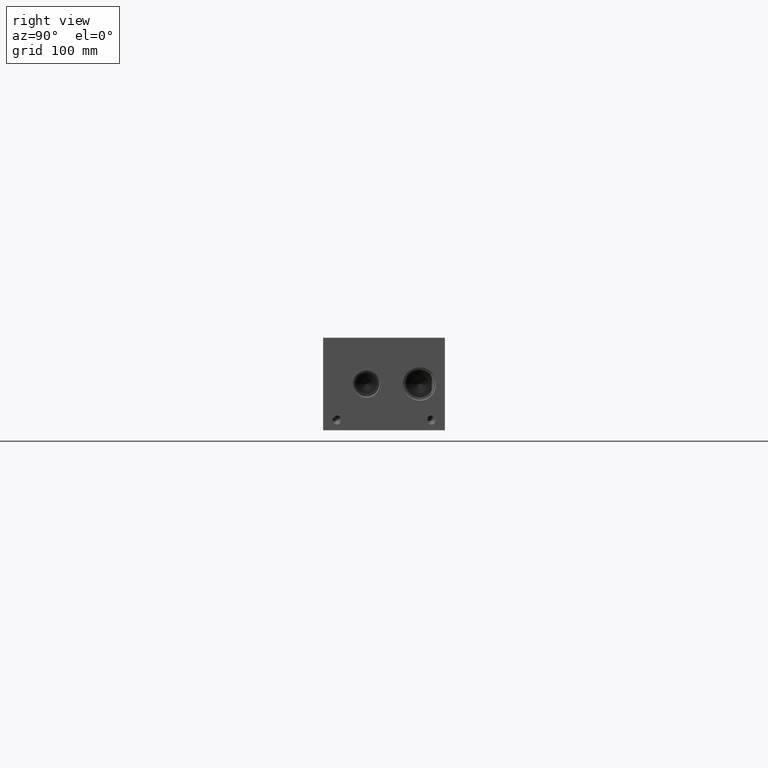
[diagram: clean part render]
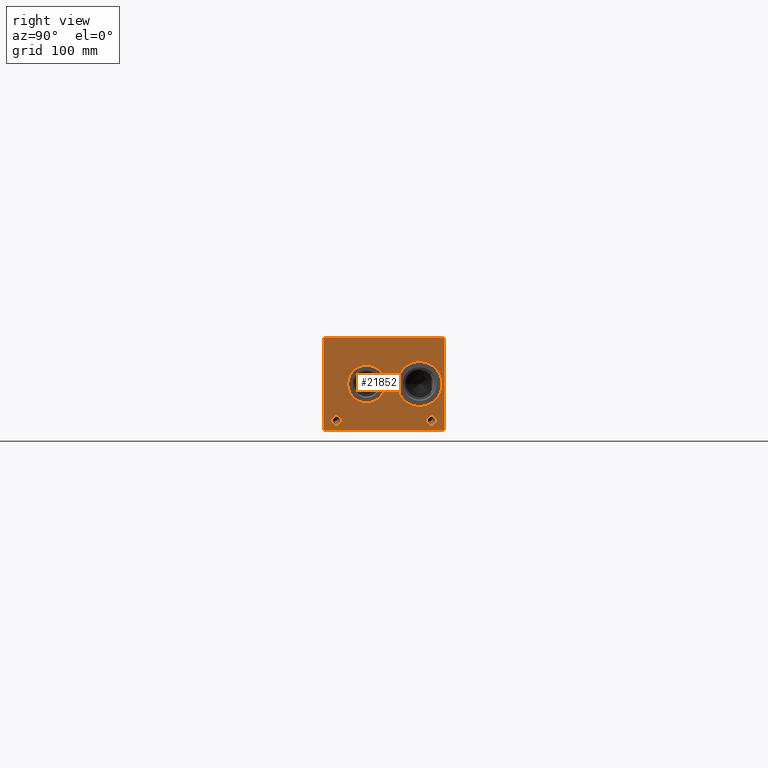
[diagram: same view with one face highlighted and labeled with its STEP entity id]
A machine part, right view. The second image highlights one B-rep face of the part: STEP entity #21852.
In plain terms, the highlighted planar face has unit normal (1, 0, 0).
Its self-contained STEP definition (entity closure, byte-faithful):
#472=CIRCLE('',#23086,6.35);
#473=CIRCLE('',#23087,6.35);
#474=CIRCLE('',#23088,6.35);
#475=CIRCLE('',#23089,6.35);
#476=CIRCLE('',#23090,24.5618);
#477=CIRCLE('',#23091,24.5618);
#478=CIRCLE('',#23092,29.2862);
#479=CIRCLE('',#23093,29.2862);
#1399=FACE_BOUND('',#3598,.T.);
#1400=FACE_BOUND('',#3599,.T.);
#1401=FACE_BOUND('',#3600,.T.);
#1402=FACE_BOUND('',#3601,.T.);
#1403=FACE_BOUND('',#3602,.T.);
#1404=FACE_BOUND('',#3603,.T.);
#1679=B_SPLINE_CURVE_WITH_KNOTS('',2,(#30847,#30848,#30849,#30850),
 .UNSPECIFIED.,.F.,.F.,(3,1,3),(0.,1.,2.),.UNSPECIFIED.);
#1681=B_SPLINE_CURVE_WITH_KNOTS('',2,(#30868,#30869,#30870,#30871),
 .UNSPECIFIED.,.F.,.F.,(3,1,3),(0.,1.,2.),.UNSPECIFIED.);
#1683=B_SPLINE_CURVE_WITH_KNOTS('',2,(#30917,#30918,#30919,#30920),
 .UNSPECIFIED.,.F.,.F.,(3,1,3),(0.,1.,2.),.UNSPECIFIED.);
#1685=B_SPLINE_CURVE_WITH_KNOTS('',2,(#30935,#30936,#30937,#30938),
 .UNSPECIFIED.,.F.,.F.,(3,1,3),(0.,1.,2.),.UNSPECIFIED.);
#2369=FACE_OUTER_BOUND('',#3597,.T.);
#3597=EDGE_LOOP('',(#14334,#14335,#14336,#14337));
#3598=EDGE_LOOP('',(#14338,#14339,#14340,#14341,#14342,#14343,#14344,#14345));
#3599=EDGE_LOOP('',(#14346,#14347));
#3600=EDGE_LOOP('',(#14348,#14349));
#3601=EDGE_LOOP('',(#14350,#14351));
#3602=EDGE_LOOP('',(#14352,#14353));
#3603=EDGE_LOOP('',(#14354,#14355,#14356,#14357,#14358,#14359,#14360,#14361,
#14362));
#5070=LINE('',#30697,#6907);
#5074=LINE('',#30705,#6911);
#5077=LINE('',#30711,#6914);
#5080=LINE('',#30717,#6917);
#5083=LINE('',#30723,#6920);
#5086=LINE('',#30729,#6923);
#5089=LINE('',#30735,#6926);
#5092=LINE('',#30740,#6929);
#5110=LINE('',#30880,#6947);
#5113=LINE('',#30886,#6950);
#5116=LINE('',#30892,#6953);
#5119=LINE('',#30898,#6956);
#5122=LINE('',#30904,#6959);
#5126=LINE('',#30947,#6963);
#5127=LINE('',#30949,#6964);
#5128=LINE('',#30951,#6965);
#5129=LINE('',#30952,#6966);
#6907=VECTOR('',#25000,10.);
#6911=VECTOR('',#25006,10.);
#6914=VECTOR('',#25011,10.);
#6917=VECTOR('',#25016,10.);
#6920=VECTOR('',#25021,10.);
#6923=VECTOR('',#25026,10.);
#6926=VECTOR('',#25031,10.);
#6929=VECTOR('',#25036,10.);
#6947=VECTOR('',#25064,10.);
#6950=VECTOR('',#25069,10.);
#6953=VECTOR('',#25074,10.);
#6956=VECTOR('',#25079,10.);
#6959=VECTOR('',#25084,10.);
#6963=VECTOR('',#25092,10.);
#6964=VECTOR('',#25093,10.);
#6965=VECTOR('',#25094,10.);
#6966=VECTOR('',#25095,10.);
#8744=VERTEX_POINT('',#30695);
#8745=VERTEX_POINT('',#30696);
#8748=VERTEX_POINT('',#30704);
#8750=VERTEX_POINT('',#30710);
#8752=VERTEX_POINT('',#30716);
#8754=VERTEX_POINT('',#30722);
#8756=VERTEX_POINT('',#30728);
#8758=VERTEX_POINT('',#30734);
#8774=VERTEX_POINT('',#30845);
#8775=VERTEX_POINT('',#30846);
#8778=VERTEX_POINT('',#30867);
#8780=VERTEX_POINT('',#30879);
#8782=VERTEX_POINT('',#30885);
#8784=VERTEX_POINT('',#30891);
#8786=VERTEX_POINT('',#30897);
#8788=VERTEX_POINT('',#30903);
#8790=VERTEX_POINT('',#30916);
#8792=VERTEX_POINT('',#30945);
#8793=VERTEX_POINT('',#30946);
#8794=VERTEX_POINT('',#30948);
#8795=VERTEX_POINT('',#30950);
#8796=VERTEX_POINT('',#30953);
#8797=VERTEX_POINT('',#30954);
#8798=VERTEX_POINT('',#30957);
#8799=VERTEX_POINT('',#30958);
#8800=VERTEX_POINT('',#30961);
#8801=VERTEX_POINT('',#30962);
#8802=VERTEX_POINT('',#30965);
#8803=VERTEX_POINT('',#30966);
#11003=EDGE_CURVE('',#8744,#8745,#5070,.T.);
#11007=EDGE_CURVE('',#8748,#8744,#5074,.T.);
#11010=EDGE_CURVE('',#8750,#8748,#5077,.T.);
#11013=EDGE_CURVE('',#8752,#8750,#5080,.T.);
#11016=EDGE_CURVE('',#8754,#8752,#5083,.T.);
#11019=EDGE_CURVE('',#8756,#8754,#5086,.T.);
#11022=EDGE_CURVE('',#8758,#8756,#5089,.T.);
#11025=EDGE_CURVE('',#8745,#8758,#5092,.T.);
#11048=EDGE_CURVE('',#8774,#8775,#1679,.T.);
#11052=EDGE_CURVE('',#8778,#8774,#1681,.T.);
#11055=EDGE_CURVE('',#8780,#8778,#5110,.T.);
#11058=EDGE_CURVE('',#8782,#8780,#5113,.T.);
#11061=EDGE_CURVE('',#8784,#8782,#5116,.T.);
#11064=EDGE_CURVE('',#8786,#8784,#5119,.T.);
#11067=EDGE_CURVE('',#8788,#8786,#5122,.T.);
#11070=EDGE_CURVE('',#8790,#8788,#1683,.T.);
#11073=EDGE_CURVE('',#8775,#8790,#1685,.T.);
#11075=EDGE_CURVE('',#8792,#8793,#5126,.T.);
#11076=EDGE_CURVE('',#8793,#8794,#5127,.T.);
#11077=EDGE_CURVE('',#8795,#8794,#5128,.T.);
#11078=EDGE_CURVE('',#8792,#8795,#5129,.T.);
#11079=EDGE_CURVE('',#8796,#8797,#472,.T.);
#11080=EDGE_CURVE('',#8797,#8796,#473,.T.);
#11081=EDGE_CURVE('',#8798,#8799,#474,.T.);
#11082=EDGE_CURVE('',#8799,#8798,#475,.T.);
#11083=EDGE_CURVE('',#8800,#8801,#476,.T.);
#11084=EDGE_CURVE('',#8801,#8800,#477,.T.);
#11085=EDGE_CURVE('',#8802,#8803,#478,.T.);
#11086=EDGE_CURVE('',#8803,#8802,#479,.T.);
#14334=ORIENTED_EDGE('',*,*,#11075,.T.);
#14335=ORIENTED_EDGE('',*,*,#11076,.T.);
#14336=ORIENTED_EDGE('',*,*,#11077,.F.);
#14337=ORIENTED_EDGE('',*,*,#11078,.F.);
#14338=ORIENTED_EDGE('',*,*,#11003,.T.);
#14339=ORIENTED_EDGE('',*,*,#11025,.T.);
#14340=ORIENTED_EDGE('',*,*,#11022,.T.);
#14341=ORIENTED_EDGE('',*,*,#11019,.T.);
#14342=ORIENTED_EDGE('',*,*,#11016,.T.);
#14343=ORIENTED_EDGE('',*,*,#11013,.T.);
#14344=ORIENTED_EDGE('',*,*,#11010,.T.);
#14345=ORIENTED_EDGE('',*,*,#11007,.T.);
#14346=ORIENTED_EDGE('',*,*,#11079,.T.);
#14347=ORIENTED_EDGE('',*,*,#11080,.T.);
#14348=ORIENTED_EDGE('',*,*,#11081,.T.);
#14349=ORIENTED_EDGE('',*,*,#11082,.T.);
#14350=ORIENTED_EDGE('',*,*,#11083,.T.);
#14351=ORIENTED_EDGE('',*,*,#11084,.T.);
#14352=ORIENTED_EDGE('',*,*,#11085,.T.);
#14353=ORIENTED_EDGE('',*,*,#11086,.T.);
#14354=ORIENTED_EDGE('',*,*,#11048,.T.);
#14355=ORIENTED_EDGE('',*,*,#11073,.T.);
#14356=ORIENTED_EDGE('',*,*,#11070,.T.);
#14357=ORIENTED_EDGE('',*,*,#11067,.T.);
#14358=ORIENTED_EDGE('',*,*,#11064,.T.);
#14359=ORIENTED_EDGE('',*,*,#11061,.T.);
#14360=ORIENTED_EDGE('',*,*,#11058,.T.);
#14361=ORIENTED_EDGE('',*,*,#11055,.T.);
#14362=ORIENTED_EDGE('',*,*,#11052,.T.);
#20654=PLANE('',#23085);
#21852=ADVANCED_FACE('',(#2369,#1399,#1400,#1401,#1402,#1403,#1404),#20654,
 .T.);
#23085=AXIS2_PLACEMENT_3D('',#30944,#25090,#25091);
#23086=AXIS2_PLACEMENT_3D('',#30955,#25096,#25097);
#23087=AXIS2_PLACEMENT_3D('',#30956,#25098,#25099);
#23088=AXIS2_PLACEMENT_3D('',#30959,#25100,#25101);
#23089=AXIS2_PLACEMENT_3D('',#30960,#25102,#25103);
#23090=AXIS2_PLACEMENT_3D('',#30963,#25104,#25105);
#23091=AXIS2_PLACEMENT_3D('',#30964,#25106,#25107);
#23092=AXIS2_PLACEMENT_3D('',#30967,#25108,#25109);
#23093=AXIS2_PLACEMENT_3D('',#30968,#25110,#25111);
#25000=DIRECTION('',(0.,-1.,0.));
#25006=DIRECTION('',(0.,0.,-1.));
#25011=DIRECTION('',(0.,-1.,0.));
#25016=DIRECTION('',(0.,0.,-1.));
#25021=DIRECTION('',(0.,1.,0.));
#25026=DIRECTION('',(0.,0.,1.));
#25031=DIRECTION('',(0.,-1.,0.));
#25036=DIRECTION('',(0.,0.,1.));
#25064=DIRECTION('',(0.,1.,0.));
#25069=DIRECTION('',(0.,0.,1.));
#25074=DIRECTION('',(0.,-1.,0.));
#25079=DIRECTION('',(0.,0.,-1.));
#25084=DIRECTION('',(0.,-1.,0.));
#25090=DIRECTION('center_axis',(1.,0.,0.));
#25091=DIRECTION('ref_axis',(0.,1.,0.));
#25092=DIRECTION('',(0.,1.,0.));
#25093=DIRECTION('',(0.,0.,1.));
#25094=DIRECTION('',(0.,1.,0.));
#25095=DIRECTION('',(0.,0.,1.));
#25096=DIRECTION('center_axis',(-1.,0.,0.));
#25097=DIRECTION('ref_axis',(0.,1.,0.));
#25098=DIRECTION('center_axis',(-1.,0.,0.));
#25099=DIRECTION('ref_axis',(0.,1.,0.));
#25100=DIRECTION('center_axis',(-1.,0.,0.));
#25101=DIRECTION('ref_axis',(0.,1.,0.));
#25102=DIRECTION('center_axis',(-1.,0.,0.));
#25103=DIRECTION('ref_axis',(0.,1.,0.));
#25104=DIRECTION('center_axis',(-1.,0.,0.));
#25105=DIRECTION('ref_axis',(0.,1.,0.));
#25106=DIRECTION('center_axis',(-1.,0.,0.));
#25107=DIRECTION('ref_axis',(0.,1.,0.));
#25108=DIRECTION('center_axis',(-1.,0.,0.));
#25109=DIRECTION('ref_axis',(0.,1.,0.));
#25110=DIRECTION('center_axis',(-1.,0.,0.));
#25111=DIRECTION('ref_axis',(0.,1.,0.));
#30695=CARTESIAN_POINT('',(933.45,137.182765271453,99.187));
#30696=CARTESIAN_POINT('',(933.45,136.338843079914,99.187));
#30697=CARTESIAN_POINT('',(933.45,68.5913826357265,99.187));
#30704=CARTESIAN_POINT('',(933.45,137.182765271453,104.785703319482));
#30705=CARTESIAN_POINT('',(933.45,137.182765271453,52.3928516597408));
#30710=CARTESIAN_POINT('',(933.45,139.313154218388,104.785703319482));
#30711=CARTESIAN_POINT('',(933.45,69.656577109194,104.785703319482));
#30716=CARTESIAN_POINT('',(933.45,139.313154218388,105.536999904633));
#30717=CARTESIAN_POINT('',(933.45,139.313154218388,52.7684999523163));
#30722=CARTESIAN_POINT('',(933.45,134.208454132978,105.536999904633));
#30723=CARTESIAN_POINT('',(933.45,67.1042270664892,105.536999904633));
#30728=CARTESIAN_POINT('',(933.45,134.208454132978,104.785703319482));
#30729=CARTESIAN_POINT('',(933.45,134.208454132978,52.3928516597408));
#30734=CARTESIAN_POINT('',(933.45,136.338843079914,104.785703319482));
#30735=CARTESIAN_POINT('',(933.45,68.1694215399568,104.785703319482));
#30740=CARTESIAN_POINT('',(933.45,136.338843079914,49.5935));
#30845=CARTESIAN_POINT('',(933.45,43.3721672023594,105.140768143971));
#30846=CARTESIAN_POINT('',(933.45,44.128609654532,103.622737372604));
#30847=CARTESIAN_POINT('Ctrl Pts',(933.45,43.3721672023594,105.140768143971));
#30848=CARTESIAN_POINT('Ctrl Pts',(933.45,43.7272320268486,104.898912393956));
#30849=CARTESIAN_POINT('Ctrl Pts',(933.45,44.128609654532,104.152761675827));
#30850=CARTESIAN_POINT('Ctrl Pts',(933.45,44.128609654532,103.622737372604));
#30867=CARTESIAN_POINT('',(933.45,41.7100521543883,105.536999904633));
#30868=CARTESIAN_POINT('Ctrl Pts',(933.45,41.7100521543883,105.536999904633));
#30869=CARTESIAN_POINT('Ctrl Pts',(933.45,42.2760975267624,105.536999904633));
#30870=CARTESIAN_POINT('Ctrl Pts',(933.45,43.068561048086,105.351748691856));
#30871=CARTESIAN_POINT('Ctrl Pts',(933.45,43.3721672023594,105.140768143971));
#30879=CARTESIAN_POINT('',(933.45,40.1148333776978,105.536999904633));
#30880=CARTESIAN_POINT('',(933.45,20.0574166888489,105.536999904633));
#30885=CARTESIAN_POINT('',(933.45,40.1148333776978,99.187));
#30886=CARTESIAN_POINT('',(933.45,40.1148333776978,49.5935));
#30891=CARTESIAN_POINT('',(933.45,40.9587555692373,99.187));
#30892=CARTESIAN_POINT('',(933.45,20.4793777846186,99.187));
#30897=CARTESIAN_POINT('',(933.45,40.9587555692373,101.554098829928));
#30898=CARTESIAN_POINT('',(933.45,40.9587555692373,50.7770494149639));
#30903=CARTESIAN_POINT('',(933.45,41.6740310852372,101.554098829928));
#30904=CARTESIAN_POINT('',(933.45,20.8370155426186,101.554098829928));
#30916=CARTESIAN_POINT('',(933.45,43.5728560162011,102.21276980869));
#30917=CARTESIAN_POINT('Ctrl Pts',(933.45,43.5728560162011,102.21276980869));
#30918=CARTESIAN_POINT('Ctrl Pts',(933.45,43.2435205268198,101.888580186331));
#30919=CARTESIAN_POINT('Ctrl Pts',(933.45,42.3532855320861,101.554098829928));
#30920=CARTESIAN_POINT('Ctrl Pts',(933.45,41.6740310852372,101.554098829928));
#30935=CARTESIAN_POINT('Ctrl Pts',(933.45,44.128609654532,103.622737372604));
#30936=CARTESIAN_POINT('Ctrl Pts',(933.45,44.128609654532,103.211068010877));
#30937=CARTESIAN_POINT('Ctrl Pts',(933.45,43.8352952343018,102.47006315977));
#30938=CARTESIAN_POINT('Ctrl Pts',(933.45,43.5728560162011,102.21276980869));
#30944=CARTESIAN_POINT('Origin',(933.45,0.,0.));
#30945=CARTESIAN_POINT('',(933.45,0.,0.));
#30946=CARTESIAN_POINT('',(933.45,158.75,0.));
#30947=CARTESIAN_POINT('',(933.45,0.,0.));
#30948=CARTESIAN_POINT('',(933.45,158.75,120.65));
#30949=CARTESIAN_POINT('',(933.45,158.75,0.));
#30950=CARTESIAN_POINT('',(933.45,0.,120.65));
#30951=CARTESIAN_POINT('',(933.45,0.,120.65));
#30952=CARTESIAN_POINT('',(933.45,0.,0.));
#30953=CARTESIAN_POINT('',(933.45,147.6502,12.7));
#30954=CARTESIAN_POINT('',(933.45,134.9502,12.7));
#30955=CARTESIAN_POINT('Origin',(933.45,141.3002,12.7));
#30956=CARTESIAN_POINT('Origin',(933.45,141.3002,12.7));
#30957=CARTESIAN_POINT('',(933.45,23.8252,12.7));
#30958=CARTESIAN_POINT('',(933.45,11.1252,12.7));
#30959=CARTESIAN_POINT('Origin',(933.45,17.4752,12.7));
#30960=CARTESIAN_POINT('Origin',(933.45,17.4752,12.7));
#30961=CARTESIAN_POINT('',(933.45,81.0514,60.325));
#30962=CARTESIAN_POINT('',(933.45,31.9278,60.325));
#30963=CARTESIAN_POINT('Origin',(933.45,56.4896,60.325));
#30964=CARTESIAN_POINT('Origin',(933.45,56.4896,60.325));
#30965=CARTESIAN_POINT('',(933.45,155.1178,60.325));
#30966=CARTESIAN_POINT('',(933.45,96.5454,60.325));
#30967=CARTESIAN_POINT('Origin',(933.45,125.8316,60.325));
#30968=CARTESIAN_POINT('Origin',(933.45,125.8316,60.325));